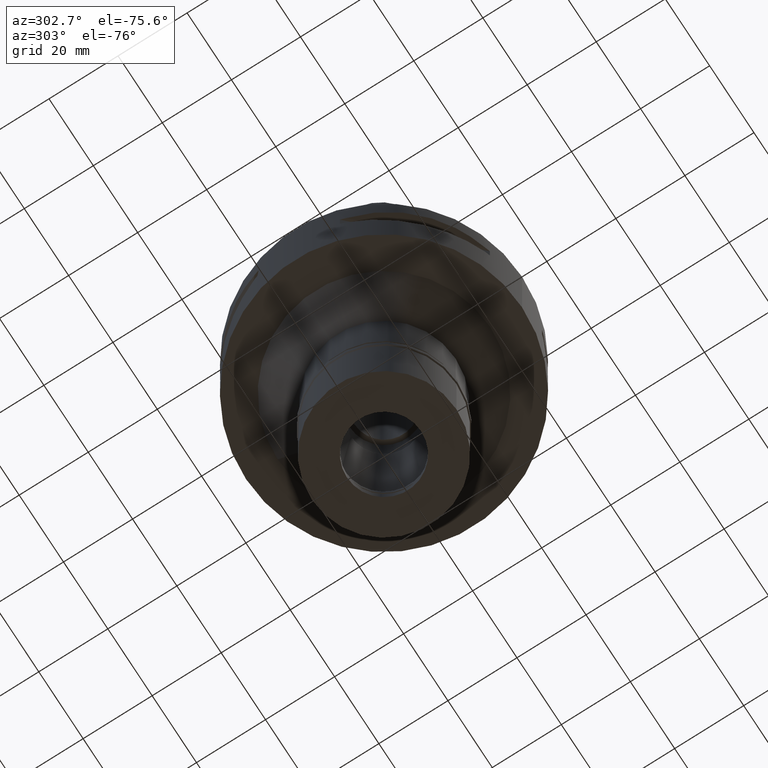
[diagram: clean part render]
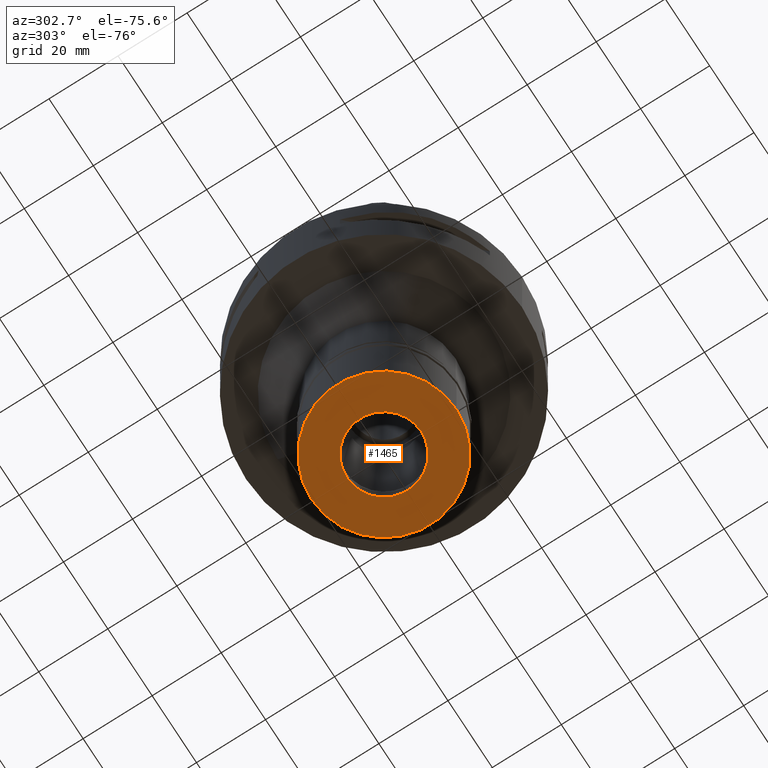
[diagram: same view with one face highlighted and labeled with its STEP entity id]
A machine part, auxiliary view. The second image highlights one B-rep face of the part: STEP entity #1465.
In plain terms, the highlighted planar face has unit normal (0, 0, -1).
Its self-contained STEP definition (entity closure, byte-faithful):
#94 = AXIS2_PLACEMENT_3D ( 'NONE', #3645, #1221, #2854 ) ;
#215 = DIRECTION ( 'NONE',  ( 0.0000000000000000000, -1.000000000000000000, 0.0000000000000000000 ) ) ;
#333 = CIRCLE ( 'NONE', #3566, 21.00000000000000000 ) ;
#435 = EDGE_CURVE ( 'NONE', #5029, #1034, #333, .T. ) ;
#656 = CIRCLE ( 'NONE', #2195, 10.75000000000000000 ) ;
#737 = DIRECTION ( 'NONE',  ( 0.0000000000000000000, 0.0000000000000000000, -1.000000000000000000 ) ) ;
#742 = DIRECTION ( 'NONE',  ( 0.0000000000000000000, 1.000000000000000000, 0.0000000000000000000 ) ) ;
#1034 = VERTEX_POINT ( 'NONE', #2200 ) ;
#1190 = DIRECTION ( 'NONE',  ( 0.0000000000000000000, 1.000000000000000000, 0.0000000000000000000 ) ) ;
#1221 = DIRECTION ( 'NONE',  ( 0.0000000000000000000, 0.0000000000000000000, -1.000000000000000000 ) ) ;
#1465 = ADVANCED_FACE ( 'NONE', ( #3270, #3679 ), #2422, .T. ) ;
#1480 = EDGE_LOOP ( 'NONE', ( #1803, #3382 ) ) ;
#1660 = VERTEX_POINT ( 'NONE', #2655 ) ;
#1669 = CARTESIAN_POINT ( 'NONE',  ( 0.0000000000000000000, 0.0000000000000000000, -27.09999999999999787 ) ) ;
#1803 = ORIENTED_EDGE ( 'NONE', *, *, #3890, .F. ) ;
#1822 = CARTESIAN_POINT ( 'NONE',  ( 0.0000000000000000000, -21.00000000000000000, -27.09999999999999787 ) ) ;
#2195 = AXIS2_PLACEMENT_3D ( 'NONE', #3509, #737, #1190 ) ;
#2200 = CARTESIAN_POINT ( 'NONE',  ( 0.0000000000000000000, 21.00000000000000000, -27.09999999999999787 ) ) ;
#2288 = CIRCLE ( 'NONE', #94, 10.75000000000000000 ) ;
#2317 = CARTESIAN_POINT ( 'NONE',  ( 0.0000000000000000000, 0.0000000000000000000, -27.09999999999999787 ) ) ;
#2422 = PLANE ( 'NONE',  #3898 ) ;
#2655 = CARTESIAN_POINT ( 'NONE',  ( 0.0000000000000000000, -10.75000000000000000, -27.09999999999999787 ) ) ;
#2677 = DIRECTION ( 'NONE',  ( 0.0000000000000000000, 0.0000000000000000000, 1.000000000000000000 ) ) ;
#2854 = DIRECTION ( 'NONE',  ( 0.0000000000000000000, -1.000000000000000000, 0.0000000000000000000 ) ) ;
#3023 = CARTESIAN_POINT ( 'NONE',  ( 0.0000000000000000000, 10.75000000000000000, -27.09999999999999787 ) ) ;
#3270 = FACE_OUTER_BOUND ( 'NONE', #4141, .T. ) ;
#3296 = DIRECTION ( 'NONE',  ( 0.0000000000000000000, 0.0000000000000000000, 1.000000000000000000 ) ) ;
#3382 = ORIENTED_EDGE ( 'NONE', *, *, #4305, .F. ) ;
#3509 = CARTESIAN_POINT ( 'NONE',  ( 0.0000000000000000000, 0.0000000000000000000, -27.09999999999999787 ) ) ;
#3566 = AXIS2_PLACEMENT_3D ( 'NONE', #4527, #3296, #215 ) ;
#3584 = EDGE_CURVE ( 'NONE', #1034, #5029, #4400, .T. ) ;
#3642 = ORIENTED_EDGE ( 'NONE', *, *, #3584, .F. ) ;
#3645 = CARTESIAN_POINT ( 'NONE',  ( 0.0000000000000000000, 0.0000000000000000000, -27.09999999999999787 ) ) ;
#3679 = FACE_BOUND ( 'NONE', #1480, .T. ) ;
#3816 = AXIS2_PLACEMENT_3D ( 'NONE', #2317, #2677, #742 ) ;
#3890 = EDGE_CURVE ( 'NONE', #4973, #1660, #656, .T. ) ;
#3898 = AXIS2_PLACEMENT_3D ( 'NONE', #1669, #4783, #4758 ) ;
#4141 = EDGE_LOOP ( 'NONE', ( #3642, #4290 ) ) ;
#4290 = ORIENTED_EDGE ( 'NONE', *, *, #435, .F. ) ;
#4305 = EDGE_CURVE ( 'NONE', #1660, #4973, #2288, .T. ) ;
#4400 = CIRCLE ( 'NONE', #3816, 21.00000000000000000 ) ;
#4527 = CARTESIAN_POINT ( 'NONE',  ( 0.0000000000000000000, 0.0000000000000000000, -27.09999999999999787 ) ) ;
#4758 = DIRECTION ( 'NONE',  ( 0.0000000000000000000, -1.000000000000000000, 0.0000000000000000000 ) ) ;
#4783 = DIRECTION ( 'NONE',  ( 0.0000000000000000000, 0.0000000000000000000, -1.000000000000000000 ) ) ;
#4973 = VERTEX_POINT ( 'NONE', #3023 ) ;
#5029 = VERTEX_POINT ( 'NONE', #1822 ) ;